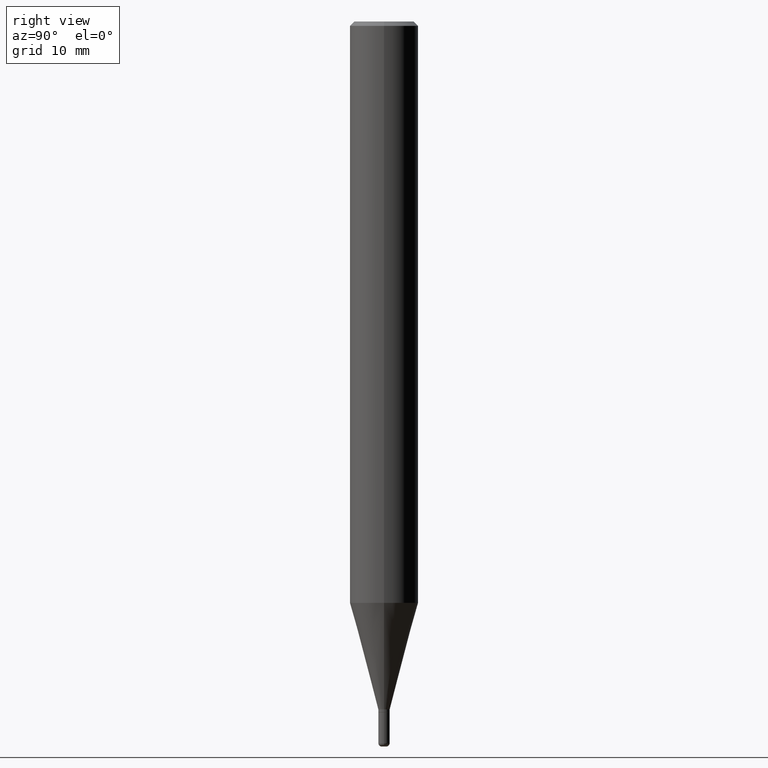
[diagram: clean part render]
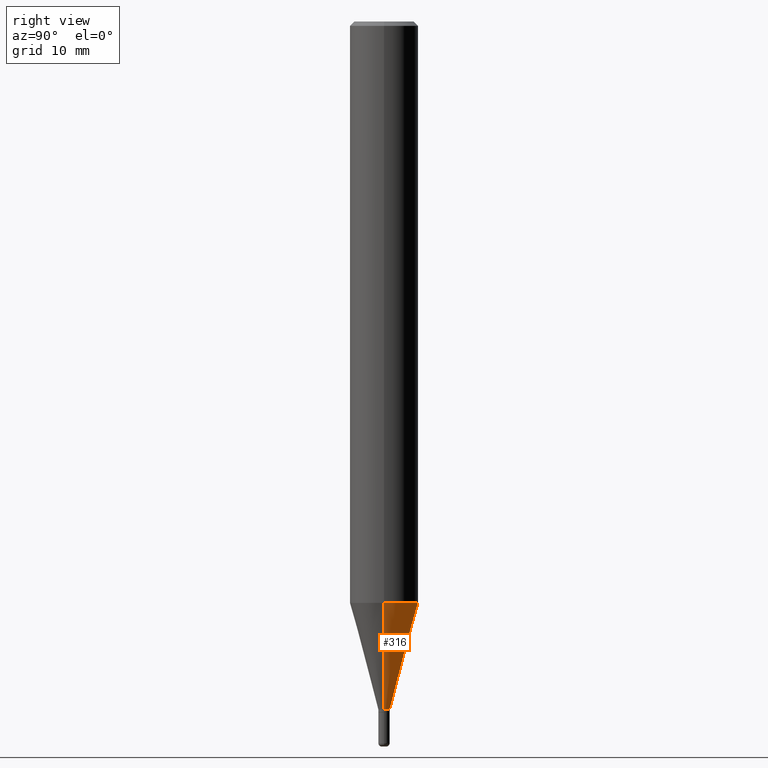
[diagram: same view with one face highlighted and labeled with its STEP entity id]
A machine part, right view. The second image highlights one B-rep face of the part: STEP entity #316.
In plain terms, the highlighted conical surface has half-angle 15 deg.
Its self-contained STEP definition (entity closure, byte-faithful):
#3 = DIRECTION ( 'NONE',  ( -2.445468806185136597E-29, 3.491481338843145583E-15, 1.000000000000000000 ) ) ;
#5 = AXIS2_PLACEMENT_3D ( 'NONE', #326, #3, #494 ) ;
#33 = ORIENTED_EDGE ( 'NONE', *, *, #427, .F. ) ;
#45 = CONICAL_SURFACE ( 'NONE', #5, 0.01969999999999997101, 0.2617993877991492968 ) ;
#64 = ORIENTED_EDGE ( 'NONE', *, *, #203, .T. ) ;
#93 = CIRCLE ( 'NONE', #386, 0.1180999999999999966 ) ;
#128 = VERTEX_POINT ( 'NONE', #425 ) ;
#133 = DIRECTION ( 'NONE',  ( 0.2588190451025205729, 1.565188264969627490E-15, 0.9659258262890682012 ) ) ;
#157 = CARTESIAN_POINT ( 'NONE',  ( 0.01969999999999997101, -8.419008952352476799E-15, -2.371900000000000119 ) ) ;
#169 = DIRECTION ( 'NONE',  ( 1.000000000000000000, -6.982962677686265133E-15, 0.000000000000000000 ) ) ;
#203 = EDGE_CURVE ( 'NONE', #330, #368, #446, .T. ) ;
#208 = CARTESIAN_POINT ( 'NONE',  ( 5.800407461390526066E-29, -8.281444587602057585E-15, -2.371900000000000119 ) ) ;
#227 = CARTESIAN_POINT ( 'NONE',  ( 0.1180999999999999966, -7.823942522013067545E-15, -2.004666200535222487 ) ) ;
#232 = EDGE_LOOP ( 'NONE', ( #64, #296, #33, #268 ) ) ;
#236 = DIRECTION ( 'NONE',  ( -0.2588190451025205729, 5.211531920934544731E-15, 0.9659258262890682012 ) ) ;
#264 = DIRECTION ( 'NONE',  ( -2.445468806185136597E-29, 3.491481338843145583E-15, 1.000000000000000000 ) ) ;
#268 = ORIENTED_EDGE ( 'NONE', *, *, #337, .F. ) ;
#280 = EDGE_CURVE ( 'NONE', #368, #128, #441, .T. ) ;
#287 = CARTESIAN_POINT ( 'NONE',  ( 0.01969999999999997101, -8.419008952352476799E-15, -2.371900000000000119 ) ) ;
#290 = DIRECTION ( 'NONE',  ( -2.445468806185136597E-29, 3.491481338843145583E-15, 1.000000000000000000 ) ) ;
#292 = FACE_OUTER_BOUND ( 'NONE', #232, .T. ) ;
#296 = ORIENTED_EDGE ( 'NONE', *, *, #280, .T. ) ;
#316 = ADVANCED_FACE ( 'NONE', ( #292 ), #45, .T. ) ;
#320 = CARTESIAN_POINT ( 'NONE',  ( -0.01969999999999997101, -8.141467668657319065E-15, -2.371900000000000119 ) ) ;
#323 = VECTOR ( 'NONE', #236, 39.37007874015748854 ) ;
#326 = CARTESIAN_POINT ( 'NONE',  ( 5.800407461390526066E-29, -8.281444587602057585E-15, -2.371900000000000119 ) ) ;
#330 = VERTEX_POINT ( 'NONE', #157 ) ;
#332 = DIRECTION ( 'NONE',  ( 1.000000000000000000, -6.982962677686288799E-15, 0.000000000000000000 ) ) ;
#337 = EDGE_CURVE ( 'NONE', #330, #474, #370, .T. ) ;
#368 = VERTEX_POINT ( 'NONE', #413 ) ;
#370 = LINE ( 'NONE', #287, #431 ) ;
#386 = AXIS2_PLACEMENT_3D ( 'NONE', #495, #264, #169 ) ;
#413 = CARTESIAN_POINT ( 'NONE',  ( -0.01969999999999997101, -7.150785663751480469E-15, -2.371900000000000119 ) ) ;
#425 = CARTESIAN_POINT ( 'NONE',  ( -0.1180999999999999966, -6.160103658845641874E-15, -2.004666200535222487 ) ) ;
#427 = EDGE_CURVE ( 'NONE', #474, #128, #93, .T. ) ;
#431 = VECTOR ( 'NONE', #133, 39.37007874015748854 ) ;
#439 = AXIS2_PLACEMENT_3D ( 'NONE', #208, #290, #332 ) ;
#441 = LINE ( 'NONE', #320, #323 ) ;
#446 = CIRCLE ( 'NONE', #439, 0.01969999999999997101 ) ;
#474 = VERTEX_POINT ( 'NONE', #227 ) ;
#494 = DIRECTION ( 'NONE',  ( 1.000000000000000000, -6.982962677686288799E-15, 0.000000000000000000 ) ) ;
#495 = CARTESIAN_POINT ( 'NONE',  ( 4.902348660222563893E-29, -6.999254629778320071E-15, -2.004666200535222487 ) ) ;